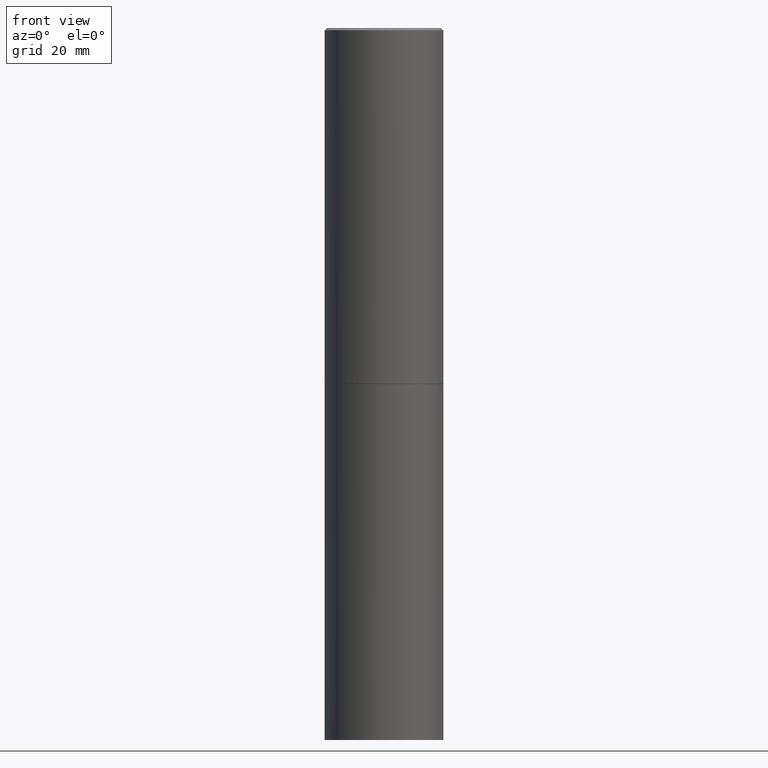
[diagram: clean part render]
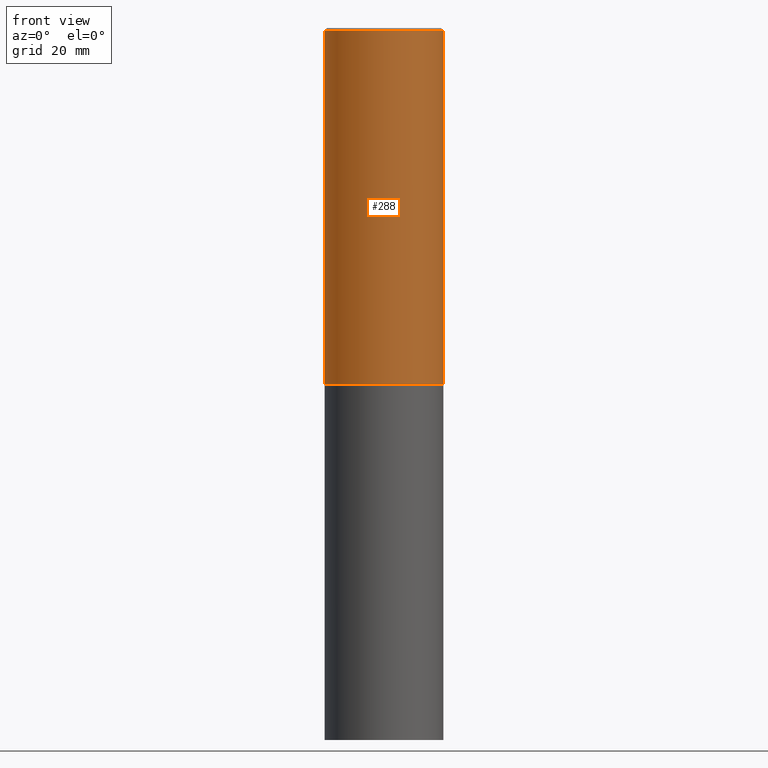
[diagram: same view with one face highlighted and labeled with its STEP entity id]
A machine part, front view. The second image highlights one B-rep face of the part: STEP entity #288.
In plain terms, the highlighted cylindrical surface (partial cylindrical patch) has radius 12.5006 mm, axis along (-0, 0, 1).
Its self-contained STEP definition (entity closure, byte-faithful):
#14 = VERTEX_POINT ( 'NONE', #159 ) ;
#21 = CARTESIAN_POINT ( 'NONE',  ( 0.4921499999999998098, -3.436665081823294593E-15, 2.399810400207968762E-29 ) ) ;
#31 = VECTOR ( 'NONE', #362, 39.37007874015748143 ) ;
#33 = CARTESIAN_POINT ( 'NONE',  ( -0.4921499999999996988, 3.366835455046430506E-15, -0.02000000000000010797 ) ) ;
#41 = AXIS2_PLACEMENT_3D ( 'NONE', #365, #125, #338 ) ;
#44 = LINE ( 'NONE', #156, #314 ) ;
#68 = ORIENTED_EDGE ( 'NONE', *, *, #257, .F. ) ;
#72 = CARTESIAN_POINT ( 'NONE',  ( 0.000000000000000000, 0.000000000000000000, 0.000000000000000000 ) ) ;
#85 = DIRECTION ( 'NONE',  ( -2.445468806185136597E-29, 3.491481338843145583E-15, 1.000000000000000000 ) ) ;
#86 = CIRCLE ( 'NONE', #218, 0.4921499999999996988 ) ;
#88 = EDGE_CURVE ( 'NONE', #352, #14, #157, .T. ) ;
#89 = ORIENTED_EDGE ( 'NONE', *, *, #339, .T. ) ;
#109 = CARTESIAN_POINT ( 'NONE',  ( -0.4921499999999999764, -1.690881473276754954E-15, -2.951700000000000212 ) ) ;
#120 = DIRECTION ( 'NONE',  ( 1.000000000000000000, -6.982962677686265922E-15, 4.876176775795935793E-29 ) ) ;
#125 = DIRECTION ( 'NONE',  ( -2.445468806185136597E-29, 3.491481338843145583E-15, 1.000000000000000000 ) ) ;
#151 = CARTESIAN_POINT ( 'NONE',  ( 0.4921499999999999764, -1.374247054968660936E-14, -2.951700000000000212 ) ) ;
#156 = CARTESIAN_POINT ( 'NONE',  ( -0.4921499999999998098, 3.496936074043331714E-15, -2.420853904668950949E-29 ) ) ;
#157 = LINE ( 'NONE', #21, #31 ) ;
#159 = CARTESIAN_POINT ( 'NONE',  ( 0.4921499999999996988, -3.446223716380120377E-15, -0.02000000000000010797 ) ) ;
#162 = DIRECTION ( 'NONE',  ( -2.445468806185136877E-29, 3.491481338843145188E-15, 1.000000000000000000 ) ) ;
#193 = EDGE_LOOP ( 'NONE', ( #356, #89, #327, #68 ) ) ;
#215 = VERTEX_POINT ( 'NONE', #109 ) ;
#218 = AXIS2_PLACEMENT_3D ( 'NONE', #349, #85, #297 ) ;
#242 = CIRCLE ( 'NONE', #41, 0.4921499999999999764 ) ;
#257 = EDGE_CURVE ( 'NONE', #266, #14, #86, .T. ) ;
#266 = VERTEX_POINT ( 'NONE', #33 ) ;
#273 = FACE_OUTER_BOUND ( 'NONE', #193, .T. ) ;
#275 = AXIS2_PLACEMENT_3D ( 'NONE', #72, #303, #120 ) ;
#288 = ADVANCED_FACE ( 'NONE', ( #273 ), #312, .T. ) ;
#297 = DIRECTION ( 'NONE',  ( 1.000000000000000000, -6.982962677686265922E-15, 0.000000000000000000 ) ) ;
#302 = EDGE_CURVE ( 'NONE', #215, #266, #44, .T. ) ;
#303 = DIRECTION ( 'NONE',  ( -2.445468806185136597E-29, 3.491481338843145583E-15, 1.000000000000000000 ) ) ;
#312 = CYLINDRICAL_SURFACE ( 'NONE', #275, 0.4921499999999998098 ) ;
#314 = VECTOR ( 'NONE', #162, 39.37007874015748143 ) ;
#327 = ORIENTED_EDGE ( 'NONE', *, *, #88, .T. ) ;
#338 = DIRECTION ( 'NONE',  ( 1.000000000000000000, -6.982962677686265922E-15, 0.000000000000000000 ) ) ;
#339 = EDGE_CURVE ( 'NONE', #215, #352, #242, .T. ) ;
#349 = CARTESIAN_POINT ( 'NONE',  ( 4.890937612370299433E-31, -6.982962677686328587E-17, -0.02000000000000010797 ) ) ;
#352 = VERTEX_POINT ( 'NONE', #151 ) ;
#356 = ORIENTED_EDGE ( 'NONE', *, *, #302, .F. ) ;
#362 = DIRECTION ( 'NONE',  ( -2.445468806185136877E-29, 3.491481338843145188E-15, 1.000000000000000000 ) ) ;
#365 = CARTESIAN_POINT ( 'NONE',  ( 7.218290275216666916E-29, -1.030580546786331359E-14, -2.951700000000000212 ) ) ;